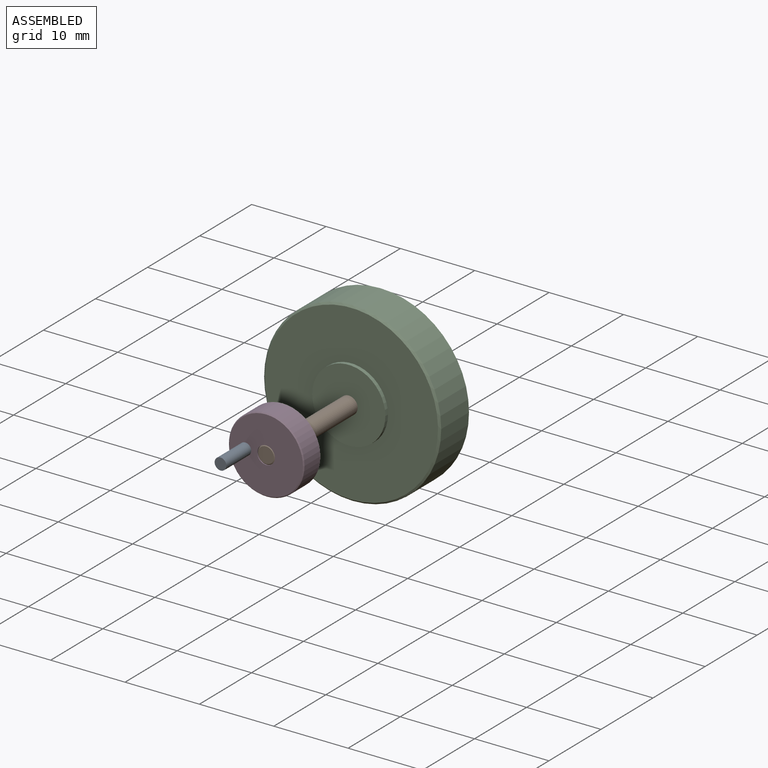
[diagram: assembled view]
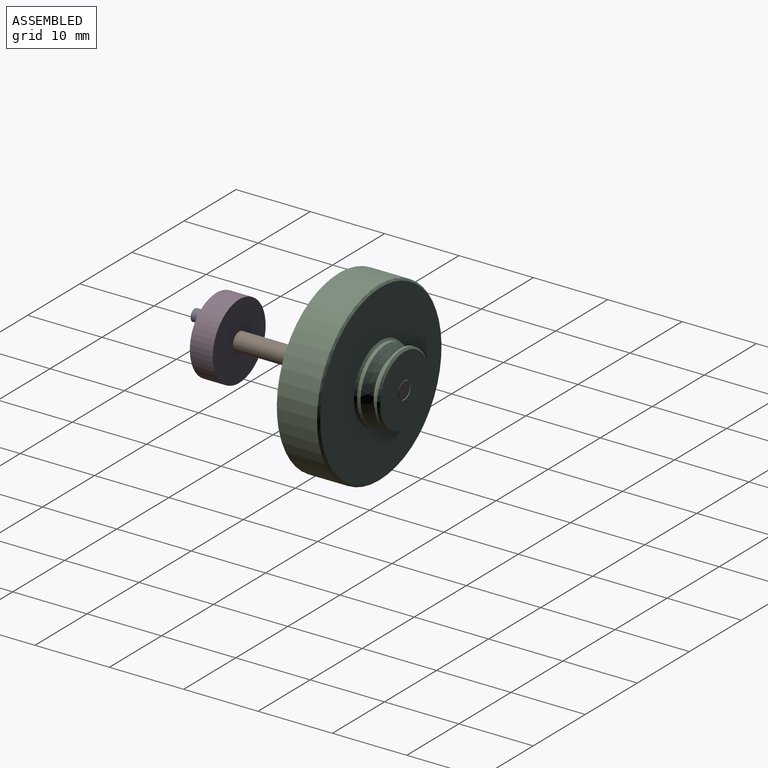
[diagram: assembled view, second angle]
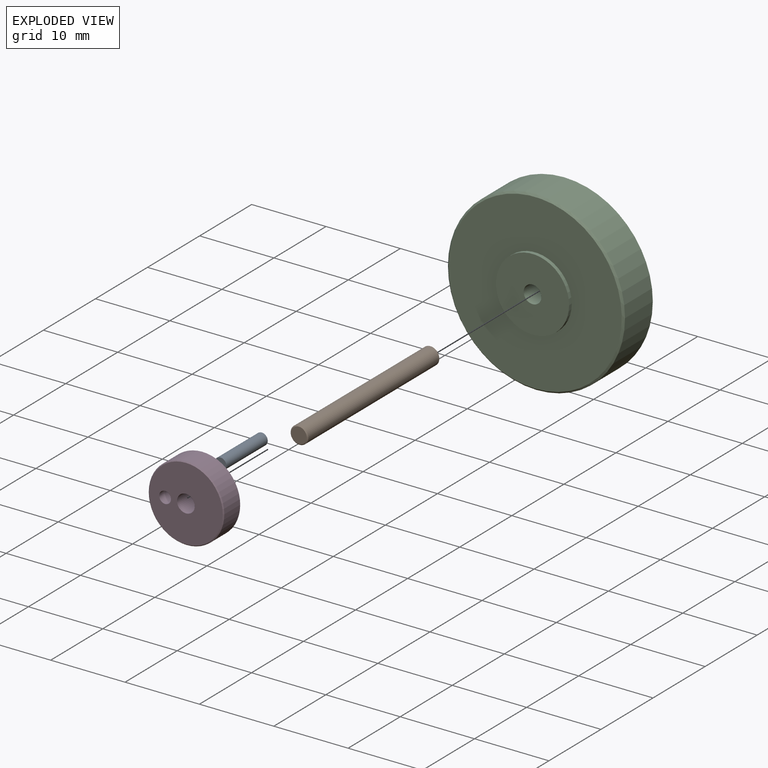
[diagram: exploded view]
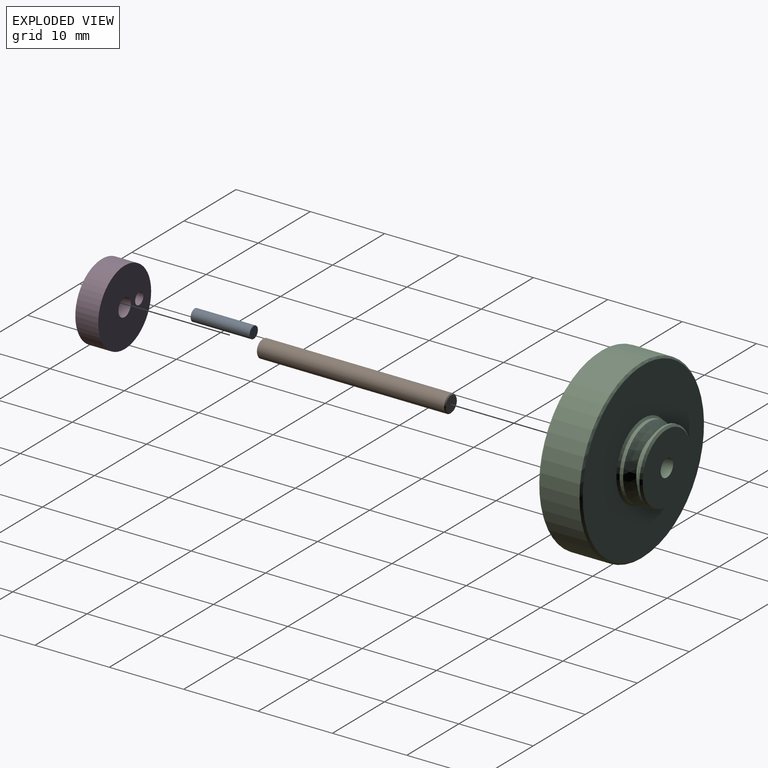
[diagram: exploded view, second angle]
ASSEMBLY  parts=4 mates=3
PART A: 3 faces, bbox 1.6x7.9x1.6 mm
  f0: cylinder r=0.79mm len=7.94mm, axis (0,1,0), area 39.6mm2, adj f1,f2
  f1: plane 1.59x1.59mm, normal (0,-1,0), area 2mm2, adj f0
  f2: plane 1.59x1.59mm, normal (0,1,0), area 2mm2, adj f0
PART B: 5 faces, bbox 2.4x25.4x2.4 mm
  f0: cylinder r=1.19mm len=25.15mm, axis (0,-1,0), area 188.2mm2, adj f3,f4
  f1: plane 2.13x2.13mm, normal (0,1,0), area 3.6mm2, adj f3
  f2: plane 2.13x2.13mm, normal (0,-1,0), area 3.6mm2, adj f4
  f3: cone r=1.19mm half-angle=45deg, axis (0,-1,0), area 1.3mm2, adj f0,f1
  f4: cone r=1.06mm half-angle=45deg, axis (0,1,0), area 1.3mm2, adj f0,f2
PART C: 15 faces, bbox 23.8x9.5x23.8 mm
  f0: cylinder r=4.92mm len=9.84mm, axis (0,-1,0), area 9.1mm2, adj f10,f13
  f1: cylinder r=4.92mm len=9.84mm, axis (0,-1,0), area 14.4mm2, adj f9,f14
  f2: cylinder r=11.91mm len=23.81mm, axis (0,-1,0), area 399mm2, adj f11,f12
  f3: plane 23.3x23.3mm, normal (0,1,0), area 342.4mm2, adj f9,f12
  f4: plane 23.3x23.3mm, normal (0,-1,0), area 350.5mm2, adj f6,f11
  f5: cylinder r=1.19mm len=9.53mm, axis (0,-1,0), area 71.3mm2, adj f7,f8
  f6: cylinder r=4.92mm len=9.84mm, axis (0,-1,0), area 15.7mm2, adj f4,f8
  f7: plane 9.33x9.33mm, normal (0,1,0), area 64mm2, adj f5,f10
  f8: plane 9.84x9.84mm, normal (0,-1,0), area 71.6mm2, adj f5,f6
  f9: cone r=5.18mm half-angle=45deg, axis (0,-1,0), area 11.4mm2, adj f1,f3
  f10: cone r=4.92mm half-angle=45deg, axis (0,-1,0), area 10.8mm2, adj f0,f7
  f11: cone r=11.65mm half-angle=45deg, axis (0,1,0), area 26.6mm2, adj f2,f4
  f12: cone r=11.91mm half-angle=45deg, axis (0,-1,0), area 26.6mm2, adj f2,f3
  f13: cone r=5.59mm half-angle=50.5deg, axis (0,1,0), area 40.9mm2, adj f0,f14
  f14: cone r=3.76mm half-angle=50.5deg, axis (0,-1,0), area 40.9mm2, adj f1,f13
PART D: 6 faces, bbox 10.2x3.2x10.2 mm
  f0: cylinder r=1.19mm len=3.18mm, axis (0,1,0), area 23.8mm2, adj f2,f3
  f1: cylinder r=5.08mm len=10.16mm, axis (0,1,0), area 97.3mm2, adj f3,f4
  f2: plane 9.91x9.91mm, normal (0,-1,0), area 70.6mm2, adj f0,f4,f5
  f3: plane 10.16x10.16mm, normal (0,1,0), area 74.6mm2, adj f0,f1,f5
  f4: cone r=4.95mm half-angle=45deg, axis (0,1,0), area 5.7mm2, adj f1,f2
  f5: cylinder r=0.79mm len=3.18mm, axis (0,-1,0), area 15.8mm2, adj f2,f3
PLACE A t=(-8.52,-1.56,0.25)mm
PLACE B t=(-5.73,-4.73,0.25)mm
PLACE C t=(-5.73,11.14,0.25)mm
PLACE D t=(-5.73,-1.56,0.25)mm
MATE fastened B.f0 <-> D.f0  axis (0,-1,0) through (-5.73,-4.73,0.25)mm
MATE fastened A.f0 <-> D.f5  axis (0,1,0) through (-8.52,-1.56,0.25)mm
MATE fastened C.f0 <-> B.f0  axis (0,1,0) through (-5.73,20.67,0.25)mm
